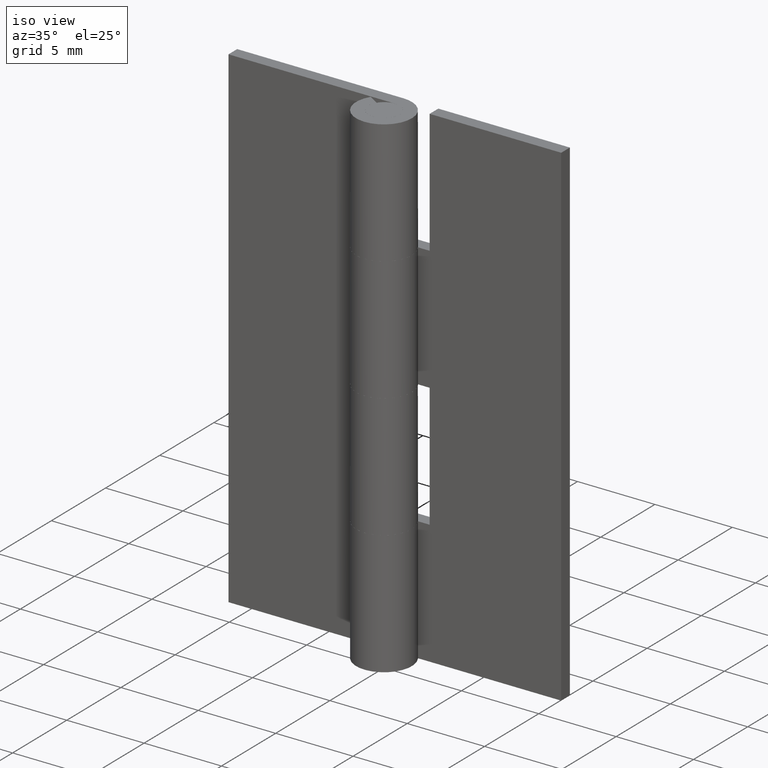
[diagram: clean part render]
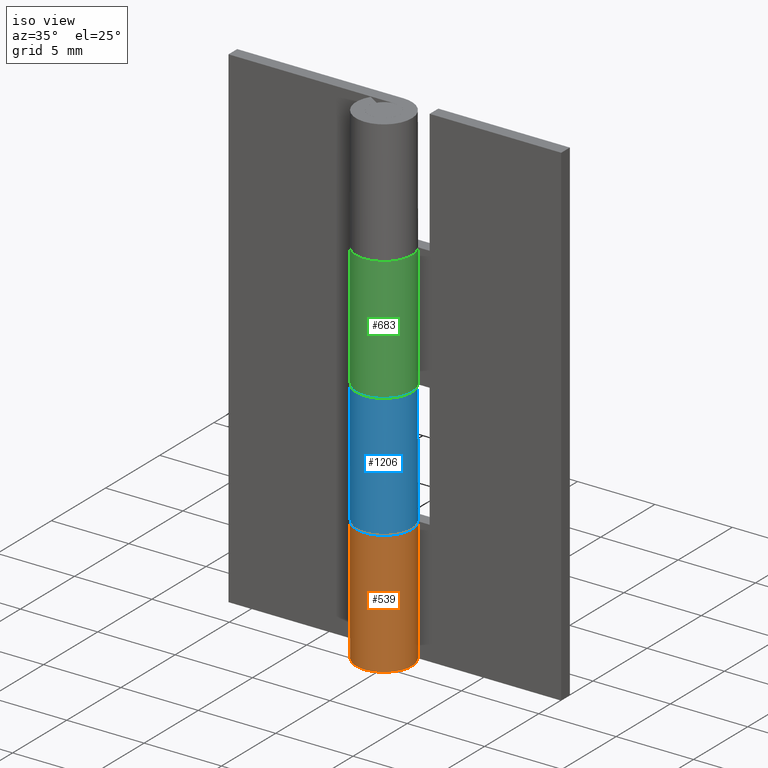
[diagram: same view with three faces highlighted in distinct colors, each labeled with its STEP entity id]
A machine part, iso view with three faces highlighted in distinct colors.
Their STEP definitions:

[orange] entity #539 — the highlighted face is a freeform B-spline surface patch.
#275=CARTESIAN_POINT('',(1.528888485142070,0.950000000000000,8.0));
#276=VERTEX_POINT('',#275);
#277=CARTESIAN_POINT('',(0.0,1.799998999999940,8.0));
#278=VERTEX_POINT('',#277);
#279=CARTESIAN_POINT('',(1.528888485142070,0.950000000000000,8.0));
#280=CARTESIAN_POINT('',(2.263977929743539,-0.233020132948154,8.0));
#281=CARTESIAN_POINT('',(1.303326767780350,-1.241506385275975,8.0));
#282=CARTESIAN_POINT('',(0.342675605817160,-2.249992637603796,8.0));
#283=CARTESIAN_POINT('',(-0.874642784226794,-1.573213772255256,8.0));
#284=CARTESIAN_POINT('',(-2.091961174270748,-0.896434906906717,8.0));
#285=CARTESIAN_POINT('',(-1.742381113599924,0.451781698599287,8.0));
#286=CARTESIAN_POINT('',(-1.392801052929100,1.799998304105293,8.0));
#287=CARTESIAN_POINT('',(0.0,1.799998999999940,8.0));
#295=(BOUNDED_CURVE()B_SPLINE_CURVE(2,(#279,#280,#281,#282,#283,#284,#285,#286,#287),.UNSPECIFIED.,.F.,.U.)B_SPLINE_CURVE_WITH_KNOTS((3,2,2,2,3),(0.0,0.250000000000000,0.500000000000000,0.750000000000000,1.0),.UNSPECIFIED.)CURVE()GEOMETRIC_REPRESENTATION_ITEM()RATIONAL_B_SPLINE_CURVE((1.0,0.790882628363956,1.0,0.790882628363956,1.0,0.790882628363956,1.0,0.790882628363956,1.0))REPRESENTATION_ITEM(''));
#296=EDGE_CURVE('',#276,#278,#295,.T.);
#332=CARTESIAN_POINT('',(0.001897366339428,1.799998999999940,8.0));
#333=VERTEX_POINT('',#332);
#339=CARTESIAN_POINT('',(0.0,1.799998999999940,8.0));
#340=CARTESIAN_POINT('',(0.001897366339428,1.799998999999940,8.0));
#341=QUASI_UNIFORM_CURVE('',1,(#339,#340),.UNSPECIFIED.,.F.,.U.);
#342=EDGE_CURVE('',#278,#333,#341,.T.);
#352=CARTESIAN_POINT('',(1.528888485142070,0.950000000000000,0.0));
#353=VERTEX_POINT('',#352);
#354=CARTESIAN_POINT('',(0.001897366339428,1.799999000000000,0.0));
#355=VERTEX_POINT('',#354);
#356=CARTESIAN_POINT('',(1.528888485142070,0.950000000000000,0.0));
#357=CARTESIAN_POINT('',(2.264178069144396,-0.233342924448490,0.0));
#358=CARTESIAN_POINT('',(1.302999556723750,-1.241850294994414,0.0));
#359=CARTESIAN_POINT('',(0.341821044303103,-2.250357665540337,0.0));
#360=CARTESIAN_POINT('',(-0.875471818949203,-1.572752076528839,0.0));
#361=CARTESIAN_POINT('',(-2.092764682201511,-0.895146487517340,0.0));
#362=CARTESIAN_POINT('',(-1.742023403149256,0.453160526613125,0.0));
#363=CARTESIAN_POINT('',(-1.391282124097001,1.801467540743590,0.0));
#364=CARTESIAN_POINT('',(0.001897366339428,1.799999000000000,0.0));
#372=(BOUNDED_CURVE()B_SPLINE_CURVE(2,(#356,#357,#358,#359,#360,#361,#362,#363,#364),.UNSPECIFIED.,.F.,.U.)B_SPLINE_CURVE_WITH_KNOTS((3,2,2,2,3),(0.0,0.250000000000000,0.500000000000000,0.750000000000000,1.0),.UNSPECIFIED.)CURVE()GEOMETRIC_REPRESENTATION_ITEM()RATIONAL_B_SPLINE_CURVE((1.0,0.790801987648649,1.0,0.790801987648649,1.0,0.790801987648649,1.0,0.790801987648649,1.0))REPRESENTATION_ITEM(''));
#373=EDGE_CURVE('',#353,#355,#372,.T.);
#464=CARTESIAN_POINT('',(1.528888485142070,0.950000000000000,8.0));
#465=CARTESIAN_POINT('',(1.528888485142070,0.950000000000000,0.0));
#466=QUASI_UNIFORM_CURVE('',1,(#464,#465),.UNSPECIFIED.,.F.,.U.);
#467=EDGE_CURVE('',#276,#353,#466,.T.);
#506=CARTESIAN_POINT('',(0.017605049264067,1.799913904118863,8.199999999999999));
#507=CARTESIAN_POINT('',(0.017605049264067,1.799913904118863,-0.205000000000000));
#508=CARTESIAN_POINT('',(-2.191930709923996,1.821525485540735,8.199999999999999));
#509=CARTESIAN_POINT('',(-2.191930709923996,1.821525485540735,-0.205000000000000));
#510=CARTESIAN_POINT('',(-1.766288852307194,-0.346732880205111,8.199999999999999));
#511=CARTESIAN_POINT('',(-1.766288852307194,-0.346732880205111,-0.205000000000000));
#512=CARTESIAN_POINT('',(-1.340646994690391,-2.514991245950957,8.199999999999999));
#513=CARTESIAN_POINT('',(-1.340646994690391,-2.514991245950957,-0.205000000000000));
#514=CARTESIAN_POINT('',(0.696744238237335,-1.659682941553317,8.199999999999999));
#515=CARTESIAN_POINT('',(0.696744238237335,-1.659682941553317,-0.205000000000000));
#516=CARTESIAN_POINT('',(2.734135471165063,-0.804374637155677,8.199999999999999));
#517=CARTESIAN_POINT('',(2.734135471165063,-0.804374637155677,-0.205000000000000));
#518=CARTESIAN_POINT('',(1.484500995521816,1.017966990768724,8.199999999999999));
#519=CARTESIAN_POINT('',(1.484500995521816,1.017966990768724,-0.205000000000000));
#527=(BOUNDED_SURFACE()B_SPLINE_SURFACE(1,2,((#506,#508,#510,#512,#514,#516,#518),(#507,#509,#511,#513,#515,#517,#519)),.UNSPECIFIED.,.F.,.F.,.U.)B_SPLINE_SURFACE_WITH_KNOTS((2,2),(3,2,2,3),(0.0,8.404999999999999),(0.0,3.421378328518648,6.842756657037295,10.264134985555939),.UNSPECIFIED.)GEOMETRIC_REPRESENTATION_ITEM()RATIONAL_B_SPLINE_SURFACE(((1.0,0.631578351302498,1.0,0.631578351302498,1.0,0.631578351302498,1.0),(1.0,0.631578351302498,1.0,0.631578351302498,1.0,0.631578351302498,1.0)))REPRESENTATION_ITEM('')SURFACE());
#528=ORIENTED_EDGE('',*,*,#296,.T.);
#529=ORIENTED_EDGE('',*,*,#342,.T.);
#530=CARTESIAN_POINT('',(0.001897366339428,1.799998999999940,8.0));
#531=CARTESIAN_POINT('',(0.001897366339428,1.799999000000000,0.0));
#532=QUASI_UNIFORM_CURVE('',1,(#530,#531),.UNSPECIFIED.,.F.,.U.);
#533=EDGE_CURVE('',#333,#355,#532,.T.);
#534=ORIENTED_EDGE('',*,*,#533,.T.);
#535=ORIENTED_EDGE('',*,*,#373,.F.);
#536=ORIENTED_EDGE('',*,*,#467,.F.);
#537=EDGE_LOOP('',(#528,#529,#534,#535,#536));
#538=FACE_OUTER_BOUND('',#537,.T.);
#539=ADVANCED_FACE('',(#538),#527,.T.);

[blue] entity #1206 — the highlighted face is a freeform B-spline surface patch.
#838=CARTESIAN_POINT('',(-1.528891033289545,0.950001583333338,16.0));
#839=VERTEX_POINT('',#838);
#845=CARTESIAN_POINT('',(0.0,1.800003000000050,16.0));
#846=VERTEX_POINT('',#845);
#847=CARTESIAN_POINT('',(-1.528891033289540,0.950001583333335,16.0));
#848=CARTESIAN_POINT('',(-2.263981703040085,-0.233021217210848,16.000000000000007));
#849=CARTESIAN_POINT('',(-1.303328939991626,-1.241508950507126,16.0));
#850=CARTESIAN_POINT('',(-0.342676176943167,-2.249996683803405,16.000000000000007));
#851=CARTESIAN_POINT('',(0.874644241964767,-1.573215894277349,16.0));
#852=CARTESIAN_POINT('',(2.091964660872703,-0.896435104751293,16.000000000000007));
#853=CARTESIAN_POINT('',(1.742384017568445,0.451783947624353,16.0));
#854=CARTESIAN_POINT('',(1.392803374264187,1.800003000000001,16.000000000000007));
#855=CARTESIAN_POINT('',(0.0,1.800003000000050,16.0));
#863=(BOUNDED_CURVE()B_SPLINE_CURVE(2,(#847,#848,#849,#850,#851,#852,#853,#854,#855),.UNSPECIFIED.,.F.,.U.)B_SPLINE_CURVE_WITH_KNOTS((3,2,2,2,3),(0.0,0.250000000000000,0.500000000000000,0.750000000000000,1.0),.UNSPECIFIED.)CURVE()GEOMETRIC_REPRESENTATION_ITEM()RATIONAL_B_SPLINE_CURVE((1.0,0.790882628363955,1.0,0.790882628363955,1.0,0.790882628363955,1.0,0.790882628363955,1.0))REPRESENTATION_ITEM(''));
#864=EDGE_CURVE('',#839,#846,#863,.T.);
#950=CARTESIAN_POINT('',(0.0,1.800003000000050,8.0));
#951=VERTEX_POINT('',#950);
#957=CARTESIAN_POINT('',(-1.528891033289545,0.950001583333338,8.0));
#958=VERTEX_POINT('',#957);
#959=CARTESIAN_POINT('',(0.0,1.800003000000050,8.0));
#960=CARTESIAN_POINT('',(1.392803374264187,1.800003000000000,8.0));
#961=CARTESIAN_POINT('',(1.742384017568445,0.451783947624354,8.0));
#962=CARTESIAN_POINT('',(2.091964660872704,-0.896435104751292,8.0));
#963=CARTESIAN_POINT('',(0.874644241964768,-1.573215894277348,8.0));
#964=CARTESIAN_POINT('',(-0.342676176943167,-2.249996683803405,8.0));
#965=CARTESIAN_POINT('',(-1.303328939991625,-1.241508950507127,8.0));
#966=CARTESIAN_POINT('',(-2.263981703040084,-0.233021217210849,8.0));
#967=CARTESIAN_POINT('',(-1.528891033289540,0.950001583333334,8.0));
#975=(BOUNDED_CURVE()B_SPLINE_CURVE(2,(#959,#960,#961,#962,#963,#964,#965,#966,#967),.UNSPECIFIED.,.F.,.U.)B_SPLINE_CURVE_WITH_KNOTS((3,2,2,2,3),(0.0,0.250000000000000,0.500000000000000,0.750000000000000,1.0),.UNSPECIFIED.)CURVE()GEOMETRIC_REPRESENTATION_ITEM()RATIONAL_B_SPLINE_CURVE((1.0,0.790882628363956,1.0,0.790882628363956,1.0,0.790882628363956,1.0,0.790882628363956,1.0))REPRESENTATION_ITEM(''));
#976=EDGE_CURVE('',#951,#958,#975,.T.);
#1170=CARTESIAN_POINT('',(-1.500996981378368,0.993488229372661,16.199999999999999));
#1171=CARTESIAN_POINT('',(-1.500996981378368,0.993488229372661,7.795000000000000));
#1172=CARTESIAN_POINT('',(-2.742552575008227,-0.882297656312770,16.200000000000006));
#1173=CARTESIAN_POINT('',(-2.742552575008227,-0.882297656312770,7.795000000000000));
#1174=CARTESIAN_POINT('',(-0.640172438219063,-1.682316869484954,16.199999999999999));
#1175=CARTESIAN_POINT('',(-0.640172438219063,-1.682316869484954,7.795000000000000));
#1176=CARTESIAN_POINT('',(1.462207698570101,-2.482336082657139,16.200000000000006));
#1177=CARTESIAN_POINT('',(1.462207698570101,-2.482336082657139,7.795000000000000));
#1178=CARTESIAN_POINT('',(1.781749244369752,-0.255695972195138,16.199999999999999));
#1179=CARTESIAN_POINT('',(1.781749244369752,-0.255695972195138,7.795000000000000));
#1180=CARTESIAN_POINT('',(2.101290790169404,1.970944138266863,16.200000000000006));
#1181=CARTESIAN_POINT('',(2.101290790169404,1.970944138266863,7.795000000000000));
#1182=CARTESIAN_POINT('',(-0.141226607687408,1.794454191471631,16.199999999999999));
#1183=CARTESIAN_POINT('',(-0.141226607687408,1.794454191471631,7.795000000000000));
#1191=(BOUNDED_SURFACE()B_SPLINE_SURFACE(1,2,((#1170,#1172,#1174,#1176,#1178,#1180,#1182),(#1171,#1173,#1175,#1177,#1179,#1181,#1183)),.UNSPECIFIED.,.F.,.F.,.U.)B_SPLINE_SURFACE_WITH_KNOTS((2,2),(3,2,2,3),(0.0,8.404999999999999),(0.0,3.459974212815107,6.919948425630214,10.379922638445320),.UNSPECIFIED.)GEOMETRIC_REPRESENTATION_ITEM()RATIONAL_B_SPLINE_SURFACE(((1.0,0.624788514543960,1.0,0.624788514543960,1.0,0.624788514543960,1.0),(1.0,0.624788514543960,1.0,0.624788514543960,1.0,0.624788514543960,1.0)))REPRESENTATION_ITEM('')SURFACE());
#1192=ORIENTED_EDGE('',*,*,#864,.F.);
#1193=CARTESIAN_POINT('',(-1.528891033289545,0.950001583333338,16.0));
#1194=CARTESIAN_POINT('',(-1.528891033289545,0.950001583333338,8.0));
#1195=QUASI_UNIFORM_CURVE('',1,(#1193,#1194),.UNSPECIFIED.,.F.,.U.);
#1196=EDGE_CURVE('',#839,#958,#1195,.T.);
#1197=ORIENTED_EDGE('',*,*,#1196,.T.);
#1198=ORIENTED_EDGE('',*,*,#976,.F.);
#1199=CARTESIAN_POINT('',(0.0,1.800003000000050,16.0));
#1200=CARTESIAN_POINT('',(0.0,1.800003000000050,8.0));
#1201=QUASI_UNIFORM_CURVE('',1,(#1199,#1200),.UNSPECIFIED.,.F.,.U.);
#1202=EDGE_CURVE('',#846,#951,#1201,.T.);
#1203=ORIENTED_EDGE('',*,*,#1202,.F.);
#1204=EDGE_LOOP('',(#1192,#1197,#1198,#1203));
#1205=FACE_OUTER_BOUND('',#1204,.T.);
#1206=ADVANCED_FACE('',(#1205),#1191,.T.);

[green] entity #683 — the highlighted face is a freeform B-spline surface patch.
#85=CARTESIAN_POINT('',(1.528888485142070,0.950000000000000,24.0));
#86=VERTEX_POINT('',#85);
#87=CARTESIAN_POINT('',(0.0,1.799998999999940,24.0));
#88=VERTEX_POINT('',#87);
#89=CARTESIAN_POINT('',(1.528888485142070,0.950000000000000,24.0));
#90=CARTESIAN_POINT('',(2.263977929743539,-0.233020132948154,23.999999999999996));
#91=CARTESIAN_POINT('',(1.303326767780350,-1.241506385275975,24.0));
#92=CARTESIAN_POINT('',(0.342675605817160,-2.249992637603796,23.999999999999996));
#93=CARTESIAN_POINT('',(-0.874642784226794,-1.573213772255256,24.0));
#94=CARTESIAN_POINT('',(-2.091961174270748,-0.896434906906717,23.999999999999996));
#95=CARTESIAN_POINT('',(-1.742381113599924,0.451781698599287,24.0));
#96=CARTESIAN_POINT('',(-1.392801052929100,1.799998304105293,23.999999999999996));
#97=CARTESIAN_POINT('',(0.0,1.799998999999940,24.0));
#105=(BOUNDED_CURVE()B_SPLINE_CURVE(2,(#89,#90,#91,#92,#93,#94,#95,#96,#97),.UNSPECIFIED.,.F.,.U.)B_SPLINE_CURVE_WITH_KNOTS((3,2,2,2,3),(0.0,0.250000000000000,0.500000000000000,0.750000000000000,1.0),.UNSPECIFIED.)CURVE()GEOMETRIC_REPRESENTATION_ITEM()RATIONAL_B_SPLINE_CURVE((1.0,0.790882628363956,1.0,0.790882628363956,1.0,0.790882628363956,1.0,0.790882628363956,1.0))REPRESENTATION_ITEM(''));
#106=EDGE_CURVE('',#86,#88,#105,.T.);
#142=CARTESIAN_POINT('',(0.001897366339428,1.799998999999940,24.0));
#143=VERTEX_POINT('',#142);
#149=CARTESIAN_POINT('',(0.0,1.799998999999940,24.0));
#150=CARTESIAN_POINT('',(0.001897366339428,1.799998999999940,24.0));
#151=QUASI_UNIFORM_CURVE('',1,(#149,#150),.UNSPECIFIED.,.F.,.U.);
#152=EDGE_CURVE('',#88,#143,#151,.T.);
#162=CARTESIAN_POINT('',(0.001897366339428,1.799998999999940,16.0));
#163=VERTEX_POINT('',#162);
#164=CARTESIAN_POINT('',(0.0,1.799998999999940,16.0));
#165=VERTEX_POINT('',#164);
#166=CARTESIAN_POINT('',(0.001897366339428,1.799998999999940,16.0));
#167=CARTESIAN_POINT('',(0.0,1.799998999999940,16.0));
#168=QUASI_UNIFORM_CURVE('',1,(#166,#167),.UNSPECIFIED.,.F.,.U.);
#169=EDGE_CURVE('',#163,#165,#168,.T.);
#213=CARTESIAN_POINT('',(1.528888485142070,0.950000000000000,16.0));
#214=VERTEX_POINT('',#213);
#220=CARTESIAN_POINT('',(0.0,1.799998999999940,16.0));
#221=CARTESIAN_POINT('',(-1.392801052929099,1.799998304105290,15.999999999999995));
#222=CARTESIAN_POINT('',(-1.742381113599923,0.451781698599287,16.0));
#223=CARTESIAN_POINT('',(-2.091961174270749,-0.896434906906716,15.999999999999995));
#224=CARTESIAN_POINT('',(-0.874642784226796,-1.573213772255254,16.0));
#225=CARTESIAN_POINT('',(0.342675605817156,-2.249992637603792,15.999999999999995));
#226=CARTESIAN_POINT('',(1.303326767780346,-1.241506385275973,16.0));
#227=CARTESIAN_POINT('',(2.263977929743537,-0.233020132948153,15.999999999999995));
#228=CARTESIAN_POINT('',(1.528888485142070,0.950000000000000,16.0));
#236=(BOUNDED_CURVE()B_SPLINE_CURVE(2,(#220,#221,#222,#223,#224,#225,#226,#227,#228),.UNSPECIFIED.,.F.,.U.)B_SPLINE_CURVE_WITH_KNOTS((3,2,2,2,3),(0.0,0.250000000000000,0.500000000000000,0.750000000000000,1.0),.UNSPECIFIED.)CURVE()GEOMETRIC_REPRESENTATION_ITEM()RATIONAL_B_SPLINE_CURVE((1.0,0.790882628363956,1.0,0.790882628363956,1.0,0.790882628363956,1.0,0.790882628363956,1.0))REPRESENTATION_ITEM(''));
#237=EDGE_CURVE('',#165,#214,#236,.T.);
#571=CARTESIAN_POINT('',(1.528888485142070,0.950000000000000,24.0));
#572=CARTESIAN_POINT('',(1.528888485142070,0.950000000000000,16.0));
#573=QUASI_UNIFORM_CURVE('',1,(#571,#572),.UNSPECIFIED.,.F.,.U.);
#574=EDGE_CURVE('',#86,#214,#573,.T.);
#636=CARTESIAN_POINT('',(0.001897366339428,1.799998999999940,24.0));
#637=CARTESIAN_POINT('',(0.001897366339428,1.799998999999940,16.0));
#638=QUASI_UNIFORM_CURVE('',1,(#636,#637),.UNSPECIFIED.,.F.,.U.);
#639=EDGE_CURVE('',#143,#163,#638,.T.);
#653=CARTESIAN_POINT('',(0.051658570403824,1.799258567328173,24.199999999999999));
#654=CARTESIAN_POINT('',(0.051658570403824,1.799258567328173,15.795000000000000));
#655=CARTESIAN_POINT('',(-2.196862823818758,1.863815937156590,24.200000000000003));
#656=CARTESIAN_POINT('',(-2.196862823818758,1.863815937156590,15.794999999999998));
#657=CARTESIAN_POINT('',(-1.766796336686053,-0.344137624610768,24.199999999999999));
#658=CARTESIAN_POINT('',(-1.766796336686053,-0.344137624610768,15.795000000000000));
#659=CARTESIAN_POINT('',(-1.336729849553347,-2.552091186378127,24.200000000000003));
#660=CARTESIAN_POINT('',(-1.336729849553347,-2.552091186378127,15.794999999999998));
#661=CARTESIAN_POINT('',(0.723182769453666,-1.648334517616289,24.199999999999999));
#662=CARTESIAN_POINT('',(0.723182769453666,-1.648334517616289,15.795000000000000));
#663=CARTESIAN_POINT('',(2.783095388460680,-0.744577848854451,24.200000000000003));
#664=CARTESIAN_POINT('',(2.783095388460680,-0.744577848854451,15.794999999999998));
#665=CARTESIAN_POINT('',(1.449639291241658,1.067026675059430,24.199999999999999));
#666=CARTESIAN_POINT('',(1.449639291241658,1.067026675059430,15.795000000000000));
#674=(BOUNDED_SURFACE()B_SPLINE_SURFACE(1,2,((#653,#655,#657,#659,#661,#663,#665),(#654,#656,#658,#660,#662,#664,#666)),.UNSPECIFIED.,.F.,.F.,.U.)B_SPLINE_SURFACE_WITH_KNOTS((2,2),(3,2,2,3),(0.0,8.405000000000008),(0.0,3.459968446201030,6.919936892402060,10.379905338603090),.UNSPECIFIED.)GEOMETRIC_REPRESENTATION_ITEM()RATIONAL_B_SPLINE_SURFACE(((1.0,0.624788514543960,1.0,0.624788514543960,1.0,0.624788514543960,1.0),(1.0,0.624788514543960,1.0,0.624788514543960,1.0,0.624788514543960,1.0)))REPRESENTATION_ITEM('')SURFACE());
#675=ORIENTED_EDGE('',*,*,#106,.T.);
#676=ORIENTED_EDGE('',*,*,#152,.T.);
#677=ORIENTED_EDGE('',*,*,#639,.T.);
#678=ORIENTED_EDGE('',*,*,#169,.T.);
#679=ORIENTED_EDGE('',*,*,#237,.T.);
#680=ORIENTED_EDGE('',*,*,#574,.F.);
#681=EDGE_LOOP('',(#675,#676,#677,#678,#679,#680));
#682=FACE_OUTER_BOUND('',#681,.T.);
#683=ADVANCED_FACE('',(#682),#674,.T.);